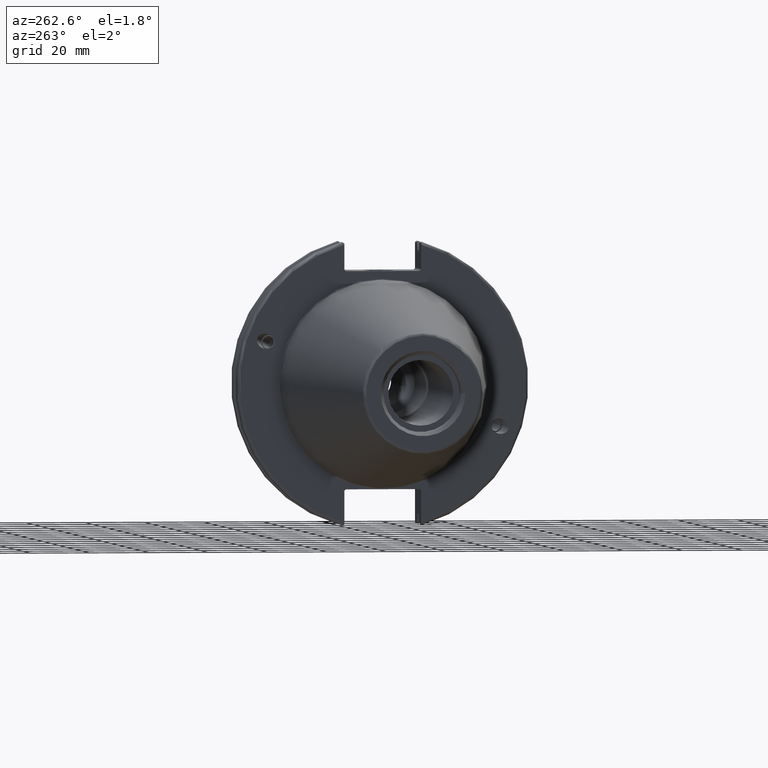
[diagram: clean part render]
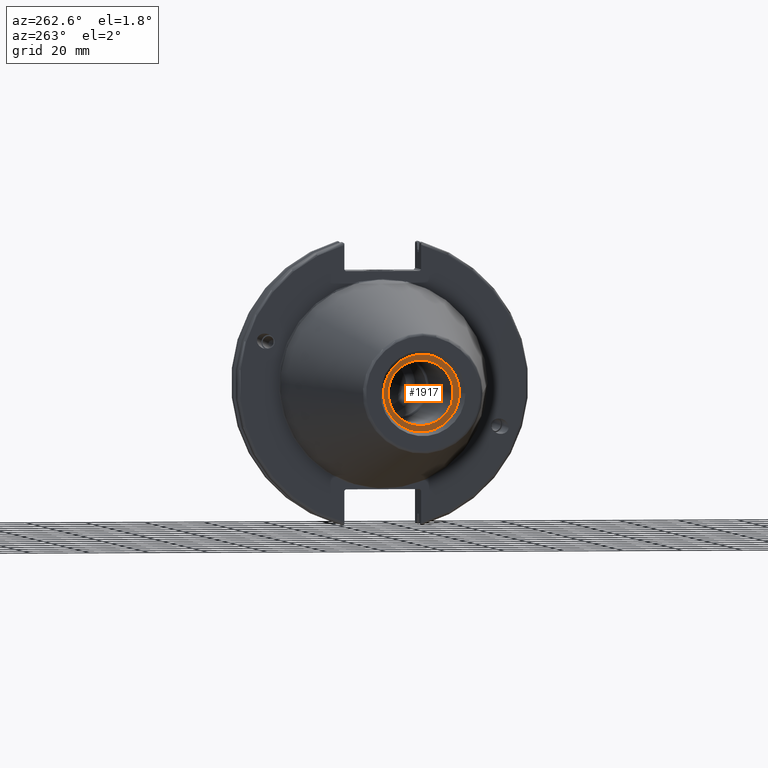
[diagram: same view with one face highlighted and labeled with its STEP entity id]
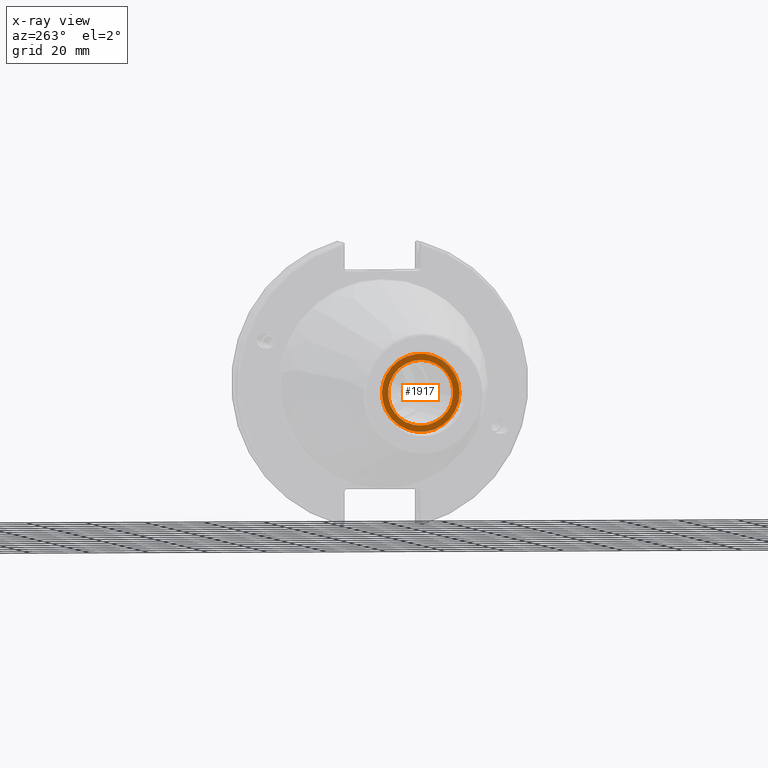
[diagram: x-ray of the same camera — body ghosted, the highlighted face saturated]
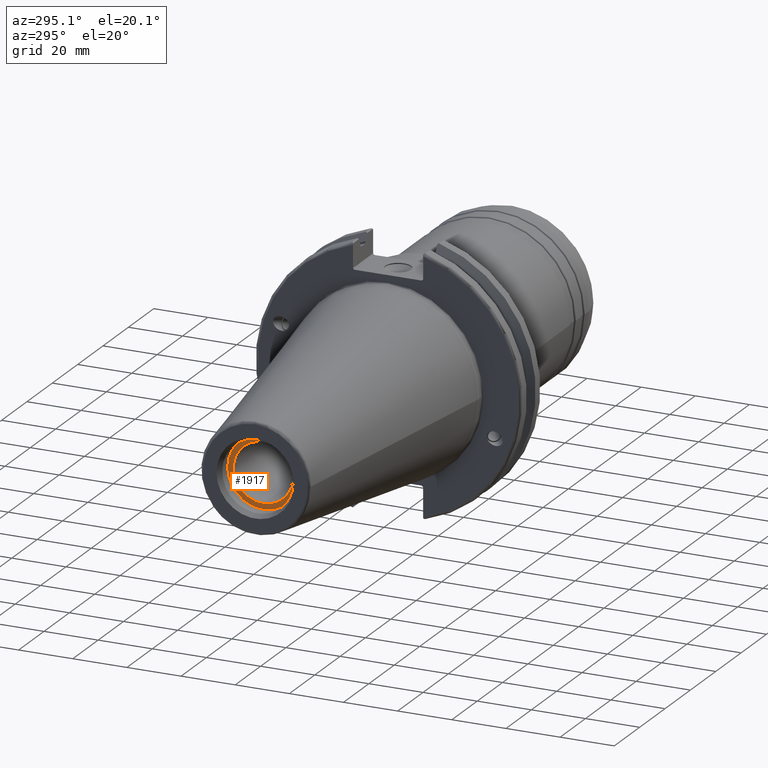
[diagram: same view with one face highlighted and labeled with its STEP entity id]
A machine part, auxiliary view. The second image highlights one B-rep face of the part: STEP entity #1917.
The next image is the same camera in x-ray: the body ghosted, the highlighted face saturated — about 0% of this face is hidden behind the body in this view.
A second angle (auxiliary view) of the same face is appended — the face is thin or edge-on in the first view.
In plain terms, the highlighted planar face has unit normal (-1, 0, 0).
Its self-contained STEP definition (entity closure, byte-faithful):
#67=PLANE('',#2170);
#125=FACE_BOUND('',#389,.T.);
#264=FACE_OUTER_BOUND('',#388,.T.);
#388=EDGE_LOOP('',(#1753));
#389=EDGE_LOOP('',(#1754));
#698=CIRCLE('',#2104,10.9855);
#725=CIRCLE('',#2171,13.1);
#854=VERTEX_POINT('',#3485);
#921=VERTEX_POINT('',#3811);
#1096=EDGE_CURVE('',#854,#854,#698,.T.);
#1203=EDGE_CURVE('',#921,#921,#725,.T.);
#1753=ORIENTED_EDGE('',*,*,#1203,.F.);
#1754=ORIENTED_EDGE('',*,*,#1096,.T.);
#1917=ADVANCED_FACE('',(#264,#125),#67,.T.);
#2104=AXIS2_PLACEMENT_3D('',#3486,#2541,#2542);
#2170=AXIS2_PLACEMENT_3D('',#3810,#2729,#2730);
#2171=AXIS2_PLACEMENT_3D('',#3812,#2731,#2732);
#2541=DIRECTION('center_axis',(1.,0.,0.));
#2542=DIRECTION('ref_axis',(0.,0.,1.));
#2729=DIRECTION('center_axis',(-1.,0.,0.));
#2730=DIRECTION('ref_axis',(0.,0.,1.));
#2731=DIRECTION('center_axis',(1.,0.,0.));
#2732=DIRECTION('ref_axis',(0.,0.,-1.));
#3485=CARTESIAN_POINT('',(-95.25,1.34533574120333E-15,-10.9855));
#3486=CARTESIAN_POINT('Origin',(-95.25,0.,0.));
#3810=CARTESIAN_POINT('Origin',(-95.25,13.1,0.));
#3811=CARTESIAN_POINT('',(-95.25,-13.1,-1.60428730688303E-15));
#3812=CARTESIAN_POINT('Origin',(-95.25,0.,0.));